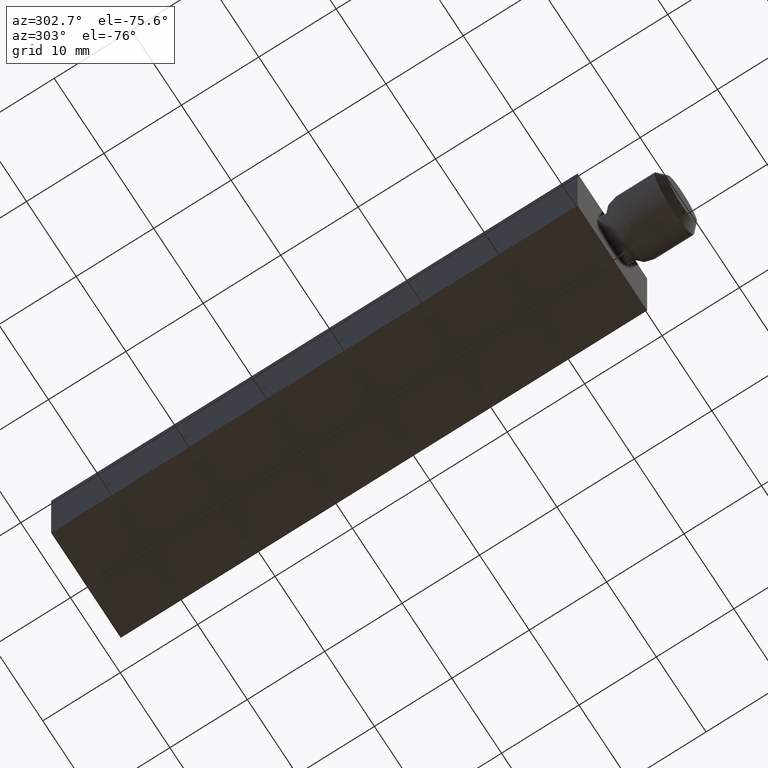
[diagram: clean part render]
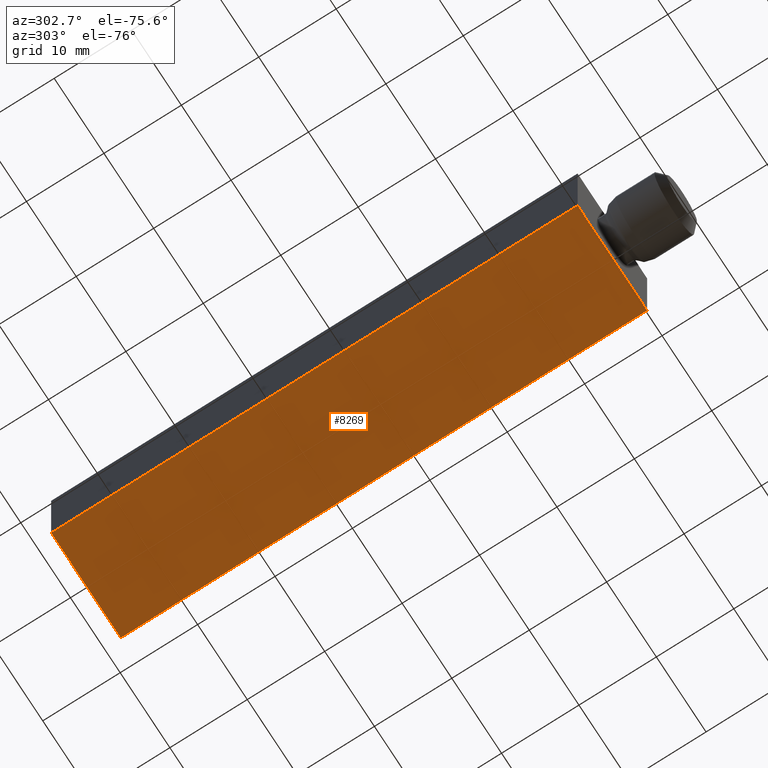
[diagram: same view with one face highlighted and labeled with its STEP entity id]
A machine part, auxiliary view. The second image highlights one B-rep face of the part: STEP entity #8269.
In plain terms, the highlighted planar face has unit normal (0, 0, 1).
Its self-contained STEP definition (entity closure, byte-faithful):
#289 = DIRECTION ( 'NONE',  ( 1.224646799147353200E-016, -1.000000000000000000, -0.0000000000000000000 ) ) ;
#486 = PLANE ( 'NONE',  #11837 ) ;
#1044 = ORIENTED_EDGE ( 'NONE', *, *, #9094, .F. ) ;
#1094 = LINE ( 'NONE', #6992, #7561 ) ;
#1111 = ORIENTED_EDGE ( 'NONE', *, *, #1641, .F. ) ;
#1641 = EDGE_CURVE ( 'NONE', #4145, #8408, #2586, .T. ) ;
#2215 = CARTESIAN_POINT ( 'NONE',  ( -7.000000000000008900, 68.00000000000000000, -6.999999999999999100 ) ) ;
#2586 = LINE ( 'NONE', #9837, #9045 ) ;
#3116 = DIRECTION ( 'NONE',  ( 1.224646799147353200E-016, -1.000000000000000000, -0.0000000000000000000 ) ) ;
#3183 = VECTOR ( 'NONE', #9691, 1000.000000000000000 ) ;
#3655 = EDGE_LOOP ( 'NONE', ( #9061, #1111, #1044, #9243 ) ) ;
#3889 = CARTESIAN_POINT ( 'NONE',  ( -7.000000000000008900, 68.00000000000000000, -6.999999999999999100 ) ) ;
#4145 = VERTEX_POINT ( 'NONE', #2215 ) ;
#4199 = VECTOR ( 'NONE', #4454, 1000.000000000000000 ) ;
#4454 = DIRECTION ( 'NONE',  ( -1.000000000000000000, -1.224646799147353000E-016, 6.195440985631452900E-017 ) ) ;
#4909 = EDGE_CURVE ( 'NONE', #6811, #8408, #5108, .T. ) ;
#5108 = LINE ( 'NONE', #10201, #4199 ) ;
#6641 = VERTEX_POINT ( 'NONE', #10000 ) ;
#6811 = VERTEX_POINT ( 'NONE', #9693 ) ;
#6992 = CARTESIAN_POINT ( 'NONE',  ( 6.999999999999992000, 68.00000000000000000, -7.000000000000000000 ) ) ;
#7561 = VECTOR ( 'NONE', #289, 1000.000000000000000 ) ;
#8269 = ADVANCED_FACE ( 'NONE', ( #12200 ), #486, .F. ) ;
#8288 = CARTESIAN_POINT ( 'NONE',  ( -7.000000000000000000, -8.572527594031473200E-016, -6.999999999999999100 ) ) ;
#8408 = VERTEX_POINT ( 'NONE', #8288 ) ;
#8913 = LINE ( 'NONE', #3889, #3183 ) ;
#9042 = DIRECTION ( 'NONE',  ( 1.000000000000000000, 0.0000000000000000000, -6.195440985631452900E-017 ) ) ;
#9045 = VECTOR ( 'NONE', #3116, 1000.000000000000000 ) ;
#9061 = ORIENTED_EDGE ( 'NONE', *, *, #4909, .T. ) ;
#9094 = EDGE_CURVE ( 'NONE', #6641, #4145, #8913, .T. ) ;
#9243 = ORIENTED_EDGE ( 'NONE', *, *, #9375, .T. ) ;
#9375 = EDGE_CURVE ( 'NONE', #6641, #6811, #1094, .T. ) ;
#9691 = DIRECTION ( 'NONE',  ( -1.000000000000000000, -1.224646799147353000E-016, 6.195440985631452900E-017 ) ) ;
#9693 = CARTESIAN_POINT ( 'NONE',  ( 7.000000000000000900, 8.572527594031474200E-016, -7.000000000000000000 ) ) ;
#9837 = CARTESIAN_POINT ( 'NONE',  ( -7.000000000000008900, 68.00000000000000000, -6.999999999999999100 ) ) ;
#10000 = CARTESIAN_POINT ( 'NONE',  ( 6.999999999999992000, 68.00000000000000000, -7.000000000000000000 ) ) ;
#10201 = CARTESIAN_POINT ( 'NONE',  ( -7.000000000000000000, -8.572527594031473200E-016, -6.999999999999999100 ) ) ;
#11837 = AXIS2_PLACEMENT_3D ( 'NONE', #11931, #12014, #9042 ) ;
#11931 = CARTESIAN_POINT ( 'NONE',  ( -7.000000000000008900, 68.00000000000000000, -6.999999999999999100 ) ) ;
#12014 = DIRECTION ( 'NONE',  ( 6.195440985631452900E-017, 7.587226972359881400E-033, 1.000000000000000000 ) ) ;
#12200 = FACE_OUTER_BOUND ( 'NONE', #3655, .T. ) ;